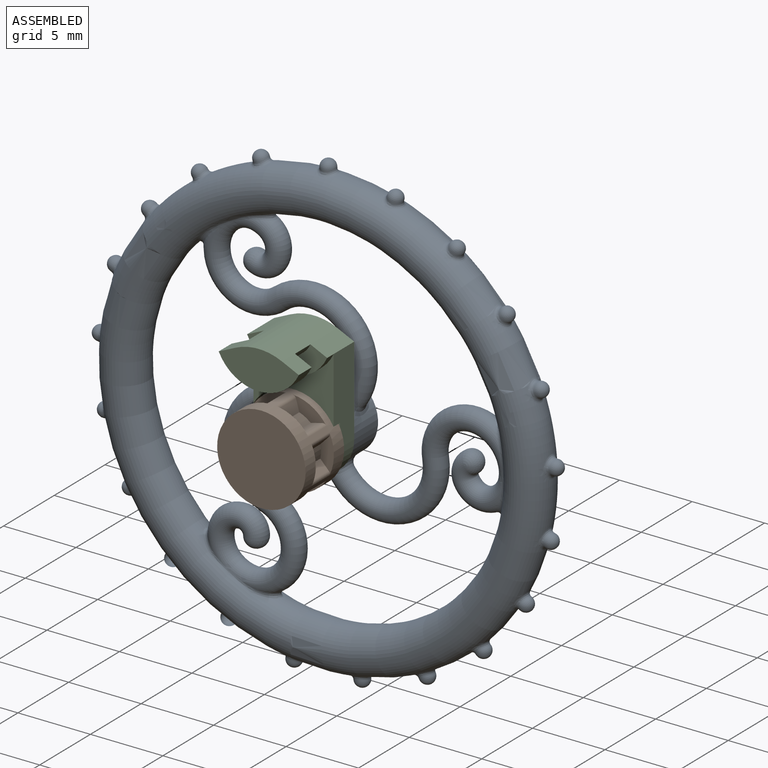
[diagram: assembled view]
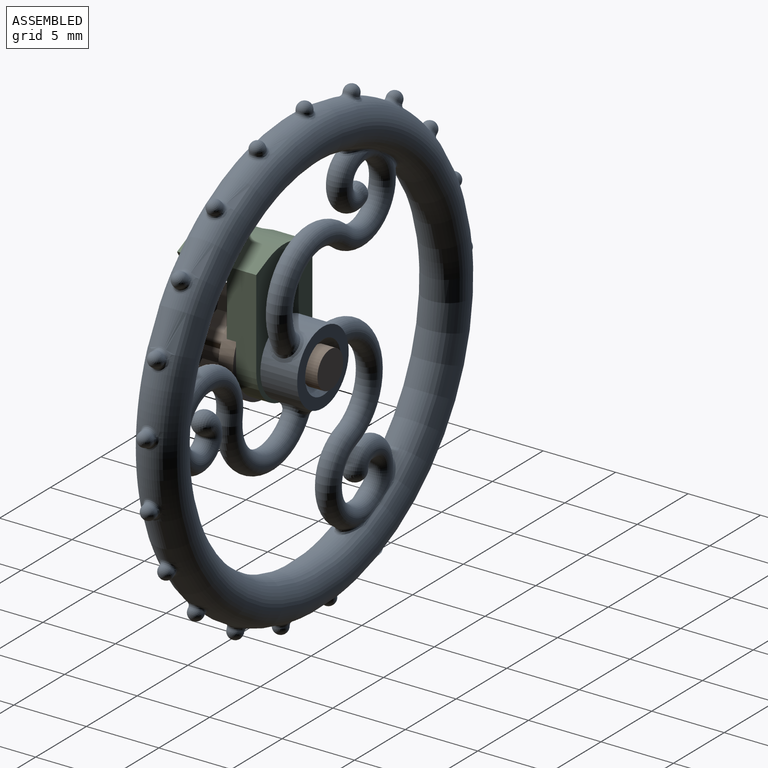
[diagram: assembled view, second angle]
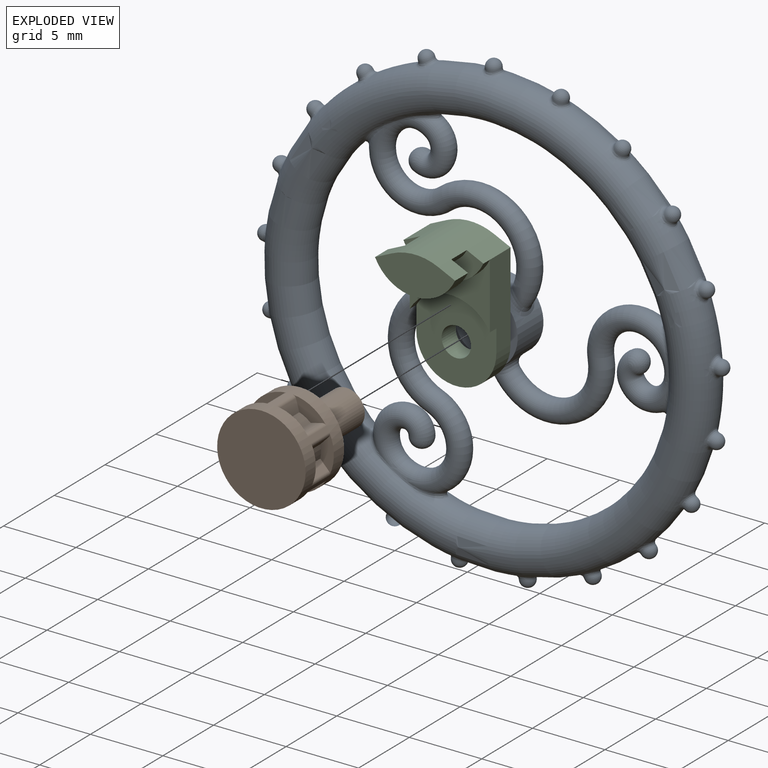
[diagram: exploded view]
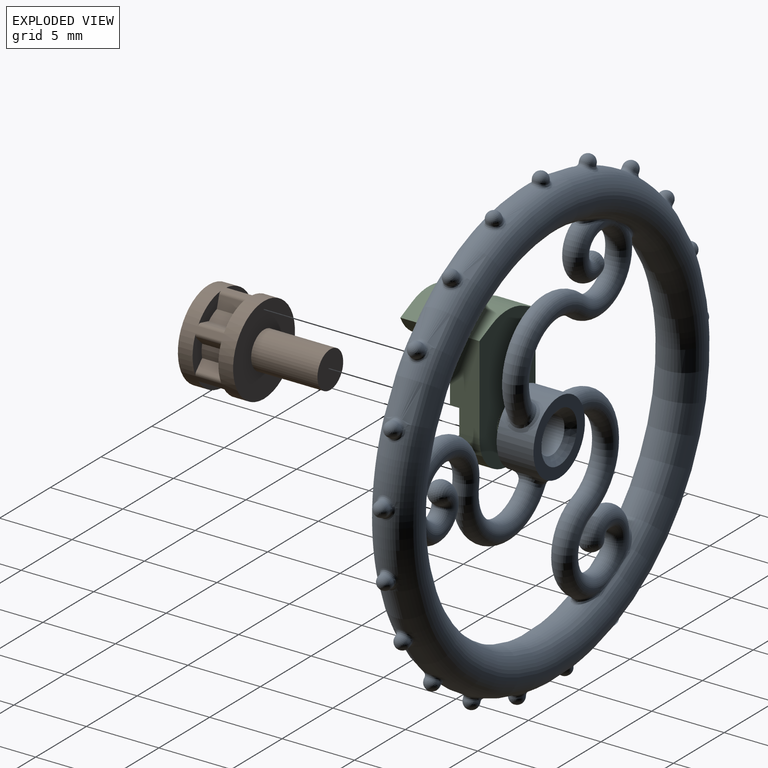
[diagram: exploded view, second angle]
ASSEMBLY  parts=3 mates=2
PART A: 104 faces, bbox 33.5x3x33.5 mm
  f0: cylinder r=2.54mm len=4.29mm, axis (0,1,0), area 9.1mm2, adj f1,f82,f86,f87
  f1: bspline ~2.54x1.77mm, area 4.2mm2, adj f0,f2,f14
  f2: cylinder r=2.54mm len=4.21mm, axis (0,1,0), area 9.1mm2, adj f1,f3,f82,f87
  f3: bspline ~2.54x2.1mm, area 4.2mm2, adj f2,f4,f5
  f4: cylinder r=2.54mm len=3.28mm, axis (0,1,0), area 9.4mm2, adj f3,f82,f86,f87
  f5: torus R=3.56mm, axis (0,1,0), area 47.3mm2, adj f3,f6
  f6: torus R=2.67mm, axis (0,-1,0), area 35.2mm2, adj f5,f7,f13
  f7: torus R=2.11mm, axis (0,-1,0), area 5.8mm2, adj f6,f8,f11
  f8: torus R=1.46mm, axis (0,-1,0), area 10.6mm2, adj f7,f9
  f9: torus R=0.94mm, axis (0,-1,0), area 6.8mm2, adj f8,f10
  f10: sphere r=0.76mm, area 3.6mm2, adj f9
  f11: bspline ~3.23x2.64mm, area 2.1mm2, adj f7,f12,f13
  f12: torus R=13.97mm, axis (0,-1,0), area 10.1mm2, adj f11,f13
  f13: bspline ~3.84x1.74mm, area 2.4mm2, adj f6,f11,f12
  f14: torus R=3.56mm, axis (0,1,0), area 47.3mm2, adj f1,f15
  f15: torus R=2.67mm, axis (0,-1,0), area 35.2mm2, adj f14,f16,f81
  f16: torus R=2.11mm, axis (0,-1,0), area 5.8mm2, adj f15,f17,f20
  f17: torus R=1.46mm, axis (0,-1,0), area 10.6mm2, adj f16,f18
  f18: torus R=0.94mm, axis (0,-1,0), area 6.8mm2, adj f17,f19
  f19: sphere r=0.76mm, area 3.6mm2, adj f18
  f20: bspline ~3.73x1.75mm, area 2.1mm2, adj f16,f21,f81
  f21: torus R=13.97mm, axis (0,-1,0), area 793.4mm2, adj f20,f22,f29,f30,f33,f36,f39,f42
  f22: bspline ~3.96x1.75mm, area 2.1mm2, adj f21,f23,f29
  f23: torus R=2.11mm, axis (0,-1,0), area 5.8mm2, adj f22,f24,f27
  f24: torus R=1.46mm, axis (0,-1,0), area 10.6mm2, adj f23,f25
  f25: torus R=0.94mm, axis (0,-1,0), area 6.8mm2, adj f24,f26
  f26: sphere r=0.76mm, area 3.6mm2, adj f25
  f27: torus R=2.67mm, axis (0,-1,0), area 37.4mm2, adj f23,f28,f29
  f28: torus R=3.56mm, axis (0,1,0), area 47.3mm2, adj f27,f86
  f29: bspline ~3.84x1.74mm, area 2.4mm2, adj f21,f22,f27
  f30: bspline ~1.5x1.31mm, area 1.2mm2, adj f21,f31
  f31: cylinder r=0.51mm len=1.02mm, axis (0,0,-1), area 0.3mm2, adj f30,f32
  f32: sphere r=0.51mm, area 1.6mm2, adj f31
  f33: bspline ~1.43x1.31mm, area 1.2mm2, adj f21,f34
  f34: cylinder r=0.51mm len=1.02mm, axis (0.29,0,-0.96), area 0.3mm2, adj f33,f35
  f35: sphere r=0.51mm, area 1.6mm2, adj f34
  f36: bspline ~1.31x1.24mm, area 1.2mm2, adj f21,f37
  f37: cylinder r=0.51mm len=1.02mm, axis (0.56,0,-0.83), area 0.3mm2, adj f36,f38
  f38: sphere r=0.51mm, area 1.6mm2, adj f37
  f39: bspline ~1.31x1.17mm, area 1.2mm2, adj f21,f40
  f40: cylinder r=0.51mm len=1.02mm, axis (0.78,0,-0.62), area 0.3mm2, adj f39,f41
  f41: sphere r=0.51mm, area 1.6mm2, adj f40
  f42: bspline ~1.4x1.31mm, area 1.2mm2, adj f21,f43
  f43: cylinder r=0.51mm len=1.02mm, axis (0.93,0,-0.37), area 0.3mm2, adj f42,f44
  f44: sphere r=0.51mm, area 1.6mm2, adj f43
  f45: bspline ~1.5x1.31mm, area 1.2mm2, adj f21,f46
  f46: cylinder r=0.51mm len=1.03mm, axis (1,0,-0.07), area 0.3mm2, adj f45,f47
  f47: sphere r=0.51mm, area 1.6mm2, adj f46
  f48: bspline ~1.49x1.31mm, area 1.2mm2, adj f21,f49
  f49: cylinder r=0.51mm len=1.03mm, axis (0.15,0,0.99), area 0.3mm2, adj f48,f50
  f50: sphere r=0.51mm, area 1.6mm2, adj f49
  f51: bspline ~1.48x1.31mm, area 1.2mm2, adj f21,f52
  f52: cylinder r=0.51mm len=1.03mm, axis (-0.15,0,0.99), area 0.3mm2, adj f51,f53
  f53: sphere r=0.51mm, area 1.6mm2, adj f52
  f54: bspline ~1.35x1.31mm, area 1.2mm2, adj f21,f55
  f55: cylinder r=0.51mm len=1.02mm, axis (-0.43,0,0.9), area 0.3mm2, adj f54,f56
  f56: sphere r=0.51mm, area 1.6mm2, adj f55
  f57: bspline ~1.31x1.1mm, area 1.2mm2, adj f21,f58
  f58: cylinder r=0.51mm len=1.02mm, axis (-0.68,0,0.73), area 0.3mm2, adj f57,f59
  f59: sphere r=0.51mm, area 1.6mm2, adj f58
  f60: bspline ~1.31x1.3mm, area 1.2mm2, adj f21,f61
  f61: cylinder r=0.51mm len=1.02mm, axis (-0.87,0,0.5), area 0.3mm2, adj f60,f62
  f62: sphere r=0.51mm, area 1.6mm2, adj f61
  f63: bspline ~1.46x1.31mm, area 1.2mm2, adj f21,f64
  f64: cylinder r=0.51mm len=1.03mm, axis (-0.97,0,0.22), area 0.3mm2, adj f63,f65
  f65: sphere r=0.51mm, area 1.6mm2, adj f64
  f66: bspline ~1.5x1.31mm, area 1.2mm2, adj f21,f67
  f67: cylinder r=0.51mm len=1.03mm, axis (-1,0,-0.07), area 0.3mm2, adj f66,f68
  f68: sphere r=0.51mm, area 1.6mm2, adj f67
  f69: bspline ~1.4x1.31mm, area 1.2mm2, adj f21,f70
  f70: cylinder r=0.51mm len=1.02mm, axis (-0.93,0,-0.37), area 0.3mm2, adj f69,f71
  f71: sphere r=0.51mm, area 1.6mm2, adj f70
  f72: bspline ~1.31x1.17mm, area 1.2mm2, adj f21,f73
  f73: cylinder r=0.51mm len=1.02mm, axis (-0.78,0,-0.62), area 0.3mm2, adj f72,f74
  f74: sphere r=0.51mm, area 1.6mm2, adj f73
  f75: bspline ~1.31x1.24mm, area 1.2mm2, adj f21,f76
  f76: cylinder r=0.51mm len=1.02mm, axis (-0.56,0,-0.83), area 0.3mm2, adj f75,f77
  f77: sphere r=0.51mm, area 1.6mm2, adj f76
  f78: bspline ~1.44x1.31mm, area 1.2mm2, adj f21,f79
  f79: cylinder r=0.51mm len=1.02mm, axis (-0.29,0,-0.96), area 0.3mm2, adj f78,f80
  f80: sphere r=0.51mm, area 1.6mm2, adj f79
  f81: bspline ~3.22x2.79mm, area 2.4mm2, adj f15,f20,f21
  f82: plane 5.08x5.08mm, normal (0,1,0), area 10.6mm2, adj f0,f2,f4,f83
  f83: cone r=1.75mm half-angle=45deg, axis (0,1,0), area 6.8mm2, adj f82,f84
  f84: cylinder r=1.24mm len=2.49mm, axis (0,1,0), area 11.9mm2, adj f83,f85
  f85: cone r=1.24mm half-angle=45deg, axis (0,-1,0), area 6.8mm2, adj f84,f87
  f86: bspline ~2.54x2.08mm, area 4.1mm2, adj f0,f4,f28
  f87: plane 5.08x5.08mm, normal (0,-1,0), area 10.6mm2, adj f0,f2,f4,f85
  f88: torus R=13.97mm, axis (0,-1,0), area 1.6mm2, adj f89
  f89: bspline ~1.35x1.31mm, area 1.2mm2, adj f88,f90
  f90: cylinder r=0.51mm len=1.02mm, axis (0.43,0,0.9), area 0.3mm2, adj f89,f91
  f91: sphere r=0.51mm, area 1.6mm2, adj f90
  f92: torus R=13.97mm, axis (0,-1,0), area 1.6mm2, adj f93
  f93: bspline ~1.31x1.1mm, area 1.2mm2, adj f92,f94
  f94: cylinder r=0.51mm len=1.02mm, axis (0.68,0,0.73), area 0.3mm2, adj f93,f95
  f95: sphere r=0.51mm, area 1.6mm2, adj f94
  f96: torus R=13.97mm, axis (0,-1,0), area 1.6mm2, adj f97
  f97: bspline ~1.31x1.3mm, area 1.2mm2, adj f96,f98
  f98: cylinder r=0.51mm len=1.02mm, axis (0.87,0,0.5), area 0.3mm2, adj f97,f99
  f99: sphere r=0.51mm, area 1.6mm2, adj f98
  f100: torus R=13.97mm, axis (0,-1,0), area 1.6mm2, adj f101
  f101: bspline ~1.46x1.31mm, area 1.2mm2, adj f100,f102
  f102: cylinder r=0.51mm len=1.03mm, axis (0.97,0,0.22), area 0.3mm2, adj f101,f103
  f103: sphere r=0.51mm, area 1.6mm2, adj f102
PART B: 48 faces, bbox 6.1x8.4x6.1 mm
  f0: plane 1.78x0.8mm, normal (-0.96,0,-0.27), area 1.5mm2, adj f3,f5,f33,f45
  f1: plane 1.78x0.8mm, normal (0.96,0,-0.27), area 1.5mm2, adj f4,f6,f31,f40
  f2: cylinder r=3.05mm len=6.1mm, axis (0,1,0), area 40.6mm2, adj f3,f4,f13,f14,f17,f18,f21,f22
  f3: cylinder r=0.25mm len=1.78mm, axis (0,1,0), area 0.6mm2, adj f0,f2,f33,f45
  f4: cylinder r=0.25mm len=1.78mm, axis (0,1,0), area 0.6mm2, adj f1,f2,f31,f40
  f5: cylinder r=2.16mm len=1.78mm, axis (0,1,0), area 1.6mm2, adj f0,f12,f33,f45
  f6: cylinder r=2.16mm len=1.78mm, axis (0,1,0), area 1.6mm2, adj f1,f27,f31,f40
  f7: cylinder r=2.16mm len=1.78mm, axis (0,1,0), area 1.6mm2, adj f23,f28,f36,f41
  f8: cylinder r=2.16mm len=1.78mm, axis (0,1,0), area 1.6mm2, adj f19,f24,f35,f42
  f9: cylinder r=2.16mm len=1.78mm, axis (0,1,0), area 1.6mm2, adj f15,f20,f34,f43
  f10: cylinder r=2.16mm len=1.78mm, axis (0,1,0), area 1.6mm2, adj f11,f16,f32,f44
  f11: plane 1.78x0.6mm, normal (-0.72,0,0.7), area 1.5mm2, adj f10,f13,f32,f44
  f12: plane 1.78x0.81mm, normal (0.24,0,-0.97), area 1.5mm2, adj f5,f14,f33,f45
  f13: cylinder r=0.25mm len=1.78mm, axis (0,1,0), area 0.6mm2, adj f2,f11,f32,f44
  f14: cylinder r=0.25mm len=1.78mm, axis (0,1,0), area 0.6mm2, adj f2,f12,f33,f45
  f15: plane 1.78x0.81mm, normal (0.24,0,0.97), area 1.5mm2, adj f9,f17,f34,f43
  f16: plane 1.78x0.6mm, normal (-0.72,0,-0.7), area 1.5mm2, adj f10,f18,f32,f44
  f17: cylinder r=0.25mm len=1.78mm, axis (0,1,0), area 0.6mm2, adj f2,f15,f34,f43
  f18: cylinder r=0.25mm len=1.78mm, axis (0,1,0), area 0.6mm2, adj f2,f16,f32,f44
  f19: plane 1.78x0.8mm, normal (0.96,0,0.27), area 1.5mm2, adj f8,f21,f35,f42
  f20: plane 1.78x0.8mm, normal (-0.96,0,0.27), area 1.5mm2, adj f9,f22,f34,f43
  f21: cylinder r=0.25mm len=1.78mm, axis (0,1,0), area 0.6mm2, adj f2,f19,f35,f42
  f22: cylinder r=0.25mm len=1.78mm, axis (0,1,0), area 0.6mm2, adj f2,f20,f34,f43
  f23: plane 1.78x0.6mm, normal (0.72,0,-0.7), area 1.5mm2, adj f7,f25,f36,f41
  f24: plane 1.78x0.81mm, normal (-0.24,0,0.97), area 1.5mm2, adj f8,f26,f35,f42
  f25: cylinder r=0.25mm len=1.78mm, axis (0,1,0), area 0.6mm2, adj f2,f23,f36,f41
  f26: cylinder r=0.25mm len=1.78mm, axis (0,1,0), area 0.6mm2, adj f2,f24,f35,f42
  f27: plane 1.78x0.81mm, normal (-0.24,0,-0.97), area 1.5mm2, adj f6,f29,f31,f40
  f28: plane 1.78x0.6mm, normal (0.72,0,0.7), area 1.5mm2, adj f7,f30,f36,f41
  f29: cylinder r=0.25mm len=1.78mm, axis (0,1,0), area 0.6mm2, adj f2,f27,f31,f40
  f30: cylinder r=0.25mm len=1.78mm, axis (0,1,0), area 0.6mm2, adj f2,f28,f36,f41
  f31: plane 2.32x1.44mm, normal (0,-1,0), area 1.5mm2, adj f1,f2,f4,f6,f27,f29
  f32: plane 2.68x0.94mm, normal (0,-1,0), area 1.5mm2, adj f2,f10,f11,f13,f16,f18
  f33: plane 2.32x1.44mm, normal (0,-1,0), area 1.5mm2, adj f0,f2,f3,f5,f12,f14
  f34: plane 2.32x1.44mm, normal (0,-1,0), area 1.5mm2, adj f2,f9,f15,f17,f20,f22
  f35: plane 2.32x1.44mm, normal (0,-1,0), area 1.5mm2, adj f2,f8,f19,f21,f24,f26
  f36: plane 2.68x0.94mm, normal (0,-1,0), area 1.5mm2, adj f2,f7,f23,f25,f28,f30
  f37: plane 6.1x6.1mm, normal (0,1,0), area 24.1mm2, adj f2,f38
  f38: cylinder r=1.27mm len=4.57mm, axis (0,-1,0), area 36.5mm2, adj f37,f39
  f39: plane 2.54x2.54mm, normal (0,1,0), area 5.1mm2, adj f38
  f40: plane 2.32x1.44mm, normal (0,1,0), area 1.5mm2, adj f1,f2,f4,f6,f27,f29
  f41: plane 2.68x0.94mm, normal (0,1,0), area 1.5mm2, adj f7,f23,f25,f28,f30,f46
  f42: plane 2.32x1.44mm, normal (0,1,0), area 1.5mm2, adj f2,f8,f19,f21,f24,f26
  f43: plane 2.32x1.44mm, normal (0,1,0), area 1.5mm2, adj f2,f9,f15,f17,f20,f22
  f44: plane 2.68x0.94mm, normal (0,1,0), area 1.5mm2, adj f2,f10,f11,f13,f16,f18
  f45: plane 2.32x1.44mm, normal (0,1,0), area 1.5mm2, adj f0,f2,f3,f5,f12,f14
  f46: extruded ~2.68x1.02mm, area 2.8mm2, adj f2,f41,f47
  f47: plane 6.1x6.1mm, normal (0,-1,0), area 29.2mm2, adj f2,f46
PART C: 17 faces, bbox 5.5x9.8x5.5 mm
  f0: cylinder r=2.76mm len=5.53mm, axis (0,0,1), area 12.1mm2, adj f11,f12,f13,f15
  f1: plane 5.53x4.53mm, normal (0,0,1), area 11.7mm2, adj f8,f11,f12,f16
  f2: cylinder r=1.02mm len=2.03mm, axis (0,0,1), area 8.9mm2, adj f13,f15
  f3: plane 5.53x2.65mm, normal (0,0,1), area 10.1mm2, adj f4,f9,f10,f14
  f4: cylinder r=3.05mm len=5.53mm, axis (0,0,1), area 8.8mm2, adj f3,f5,f9,f10
  f5: plane 5.53x2.3mm, normal (0,0,-1), area 7mm2, adj f4,f6,f9,f10
  f6: cylinder r=1.78mm len=3.22mm, axis (0,0,1), area 6.1mm2, adj f5,f7,f9,f10
  f7: plane 5.53x2.3mm, normal (0,0,1), area 7mm2, adj f6,f8,f9,f10
  f8: cylinder r=3.05mm len=5.53mm, axis (0,0,1), area 4.4mm2, adj f1,f7,f9,f10
  f9: plane 5.46x1.15mm, normal (-0.42,0.91,0), area 5mm2, adj f3,f4,f5,f6,f7,f8,f12,f13
  f10: plane 5.46x1.15mm, normal (0.42,0.91,0), area 5mm2, adj f3,f4,f5,f6,f7,f8,f11,f13
  f11: plane 6.1x2.03mm, normal (1,0,0), area 11.4mm2, adj f0,f1,f10,f13,f15,f16
  f12: plane 6.1x2.03mm, normal (-1,0,0), area 11.4mm2, adj f0,f1,f9,f13,f15,f16
  f13: plane 9.75x5.53mm, normal (0,0,-1), area 45.5mm2, adj f0,f2,f9,f10,f11,f12,f14
  f14: cylinder r=3.81mm len=5.46mm, axis (0,0,1), area 18.2mm2, adj f3,f9,f10,f13
  f15: plane 5.94x5.53mm, normal (0,0,1), area 23.7mm2, adj f0,f2,f11,f12,f16
  f16: cylinder r=3.17mm len=5.53mm, axis (0,0,1), area 4.3mm2, adj f1,f11,f12,f15
PLACE A t=(-17.53,-2.22,-7.44)mm
PLACE B t=(-21.97,-6.92,-16.33)mm
PLACE C rot(axis=(1,0,0),90deg) t=(-17.53,-7.05,-3.11)mm
MATE revolute A.f0 <-> B.f2  axis (0,1,0) through (-17.53,-0.95,-7.44)mm
MATE revolute C.f2 <-> B.f2  axis (0,-1,0) through (-17.53,-5.02,-7.44)mm
